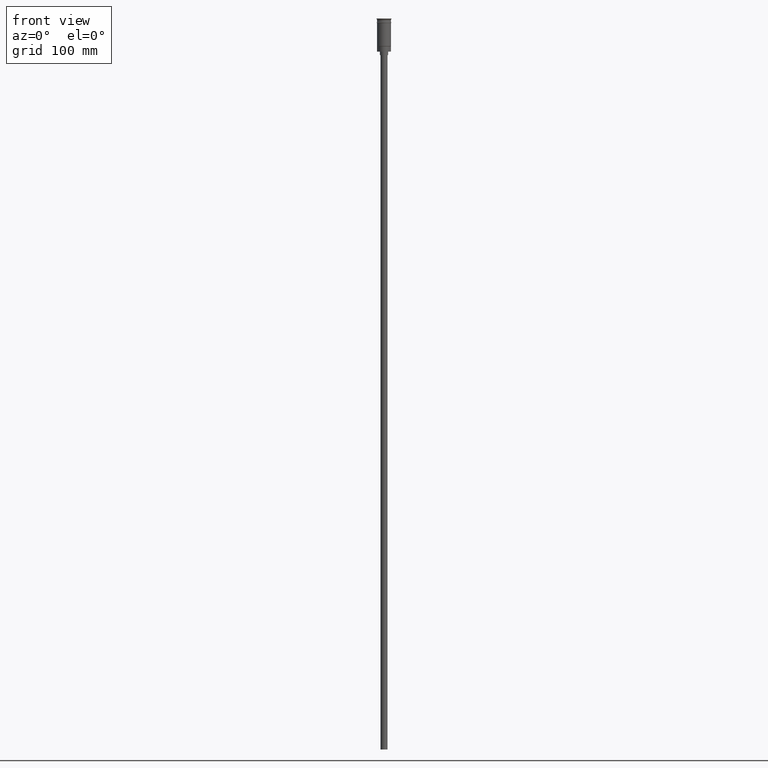
[diagram: clean part render]
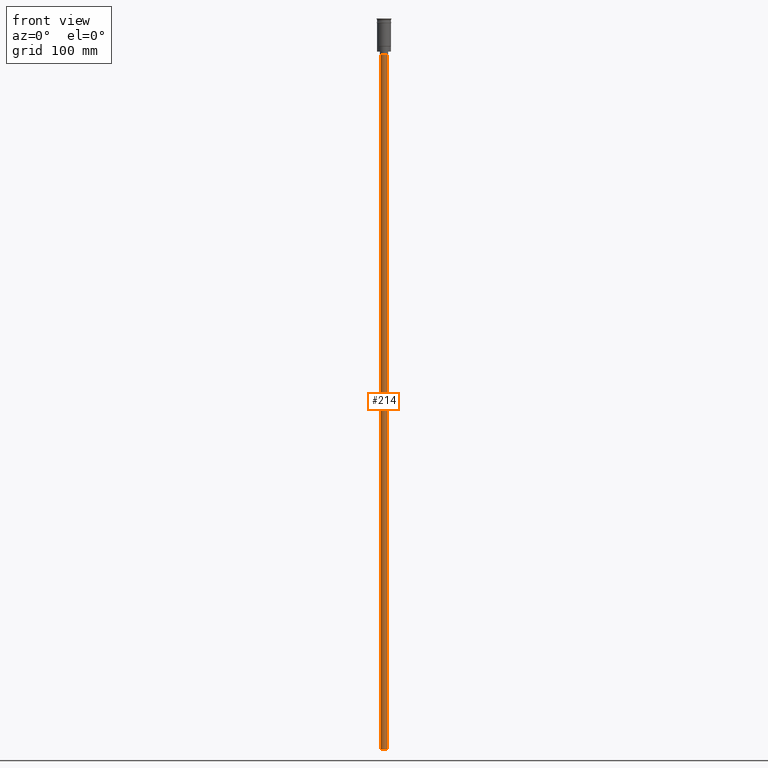
[diagram: same view with one face highlighted and labeled with its STEP entity id]
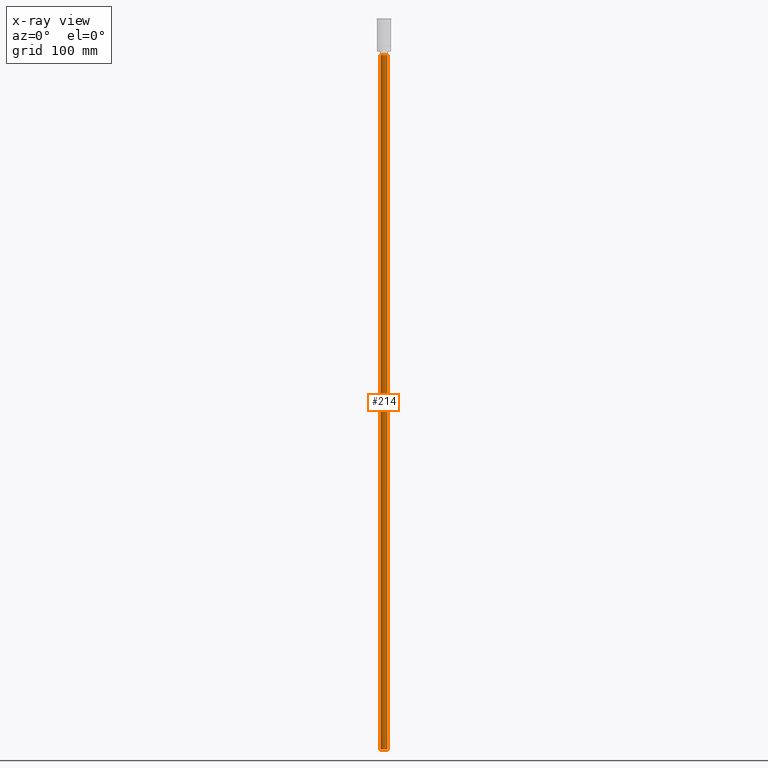
[diagram: x-ray of the same camera — body ghosted, the highlighted face saturated]
A machine part, front view. The second image highlights one B-rep face of the part: STEP entity #214.
The next image is the same camera in x-ray: the body ghosted, the highlighted face saturated — about 0% of this face is hidden behind the body in this view.
In plain terms, the highlighted cylindrical surface (edge-blend (fillet) strip) has radius 3 mm, axis along (-0, -0, 1).
Its self-contained STEP definition (entity closure, byte-faithful):
#39 = CARTESIAN_POINT ( 'NONE',  ( -3.000000000000000444, 3.673940397442060361E-16, -628.5000000000000000 ) ) ;
#63 = DIRECTION ( 'NONE',  ( -1.000000000000000000, 0.000000000000000000, 0.000000000000000000 ) ) ;
#78 = LINE ( 'NONE', #576, #1118 ) ;
#151 = DIRECTION ( 'NONE',  ( 0.000000000000000000, 0.000000000000000000, -1.000000000000000000 ) ) ;
#155 = VERTEX_POINT ( 'NONE', #694 ) ;
#214 = ADVANCED_FACE ( 'NONE', ( #357 ), #751, .T. ) ;
#256 = VERTEX_POINT ( 'NONE', #1348 ) ;
#275 = VERTEX_POINT ( 'NONE', #872 ) ;
#323 = EDGE_CURVE ( 'NONE', #155, #793, #1273, .T. ) ;
#357 = FACE_OUTER_BOUND ( 'NONE', #672, .T. ) ;
#365 = EDGE_CURVE ( 'NONE', #256, #275, #78, .T. ) ;
#410 = DIRECTION ( 'NONE',  ( -0.000000000000000000, -0.000000000000000000, 1.000000000000000000 ) ) ;
#414 = ORIENTED_EDGE ( 'NONE', *, *, #916, .F. ) ;
#512 = DIRECTION ( 'NONE',  ( -1.000000000000000000, 0.000000000000000000, 0.000000000000000000 ) ) ;
#526 = AXIS2_PLACEMENT_3D ( 'NONE', #1436, #151, #512 ) ;
#576 = CARTESIAN_POINT ( 'NONE',  ( 3.000000000000000444, 0.000000000000000000, -628.5000000000000000 ) ) ;
#614 = ORIENTED_EDGE ( 'NONE', *, *, #323, .F. ) ;
#672 = EDGE_LOOP ( 'NONE', ( #614, #414, #1094, #1112 ) ) ;
#677 = DIRECTION ( 'NONE',  ( 0.000000000000000000, 0.000000000000000000, -1.000000000000000000 ) ) ;
#694 = CARTESIAN_POINT ( 'NONE',  ( -3.000000000000000444, 3.673940397442060361E-16, -628.5000000000000000 ) ) ;
#732 = AXIS2_PLACEMENT_3D ( 'NONE', #1541, #677, #63 ) ;
#738 = DIRECTION ( 'NONE',  ( 1.000000000000000000, 0.000000000000000000, 0.000000000000000000 ) ) ;
#751 = CYLINDRICAL_SURFACE ( 'NONE', #1376, 3.000000000000000444 ) ;
#761 = CARTESIAN_POINT ( 'NONE',  ( 0.000000000000000000, 0.000000000000000000, -628.5000000000000000 ) ) ;
#789 = CIRCLE ( 'NONE', #526, 3.000000000000000444 ) ;
#793 = VERTEX_POINT ( 'NONE', #1458 ) ;
#872 = CARTESIAN_POINT ( 'NONE',  ( 3.000000000000000444, 0.000000000000000000, -31.50000000000000000 ) ) ;
#916 = EDGE_CURVE ( 'NONE', #256, #155, #1426, .T. ) ;
#1094 = ORIENTED_EDGE ( 'NONE', *, *, #365, .T. ) ;
#1112 = ORIENTED_EDGE ( 'NONE', *, *, #1184, .T. ) ;
#1118 = VECTOR ( 'NONE', #410, 1000.000000000000000 ) ;
#1184 = EDGE_CURVE ( 'NONE', #275, #793, #789, .T. ) ;
#1237 = DIRECTION ( 'NONE',  ( -0.000000000000000000, -0.000000000000000000, 1.000000000000000000 ) ) ;
#1273 = LINE ( 'NONE', #39, #1584 ) ;
#1348 = CARTESIAN_POINT ( 'NONE',  ( 3.000000000000000444, 0.000000000000000000, -628.5000000000000000 ) ) ;
#1376 = AXIS2_PLACEMENT_3D ( 'NONE', #761, #1237, #738 ) ;
#1426 = CIRCLE ( 'NONE', #732, 3.000000000000000444 ) ;
#1436 = CARTESIAN_POINT ( 'NONE',  ( 0.000000000000000000, 0.000000000000000000, -31.50000000000000000 ) ) ;
#1458 = CARTESIAN_POINT ( 'NONE',  ( -3.000000000000000444, 3.673940397442060361E-16, -31.50000000000000000 ) ) ;
#1520 = DIRECTION ( 'NONE',  ( -0.000000000000000000, -0.000000000000000000, 1.000000000000000000 ) ) ;
#1541 = CARTESIAN_POINT ( 'NONE',  ( 0.000000000000000000, 0.000000000000000000, -628.5000000000000000 ) ) ;
#1584 = VECTOR ( 'NONE', #1520, 1000.000000000000000 ) ;